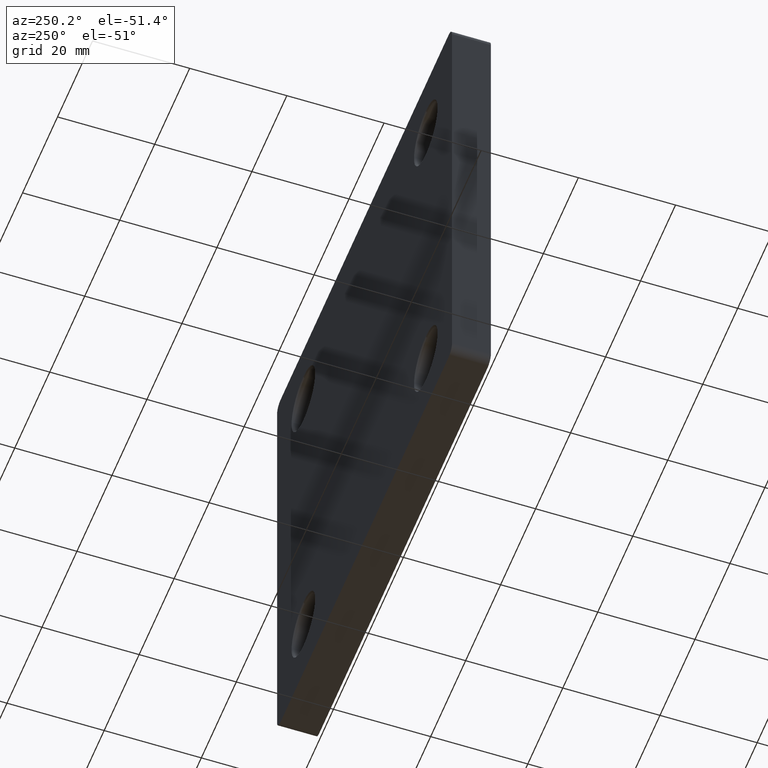
[diagram: clean part render]
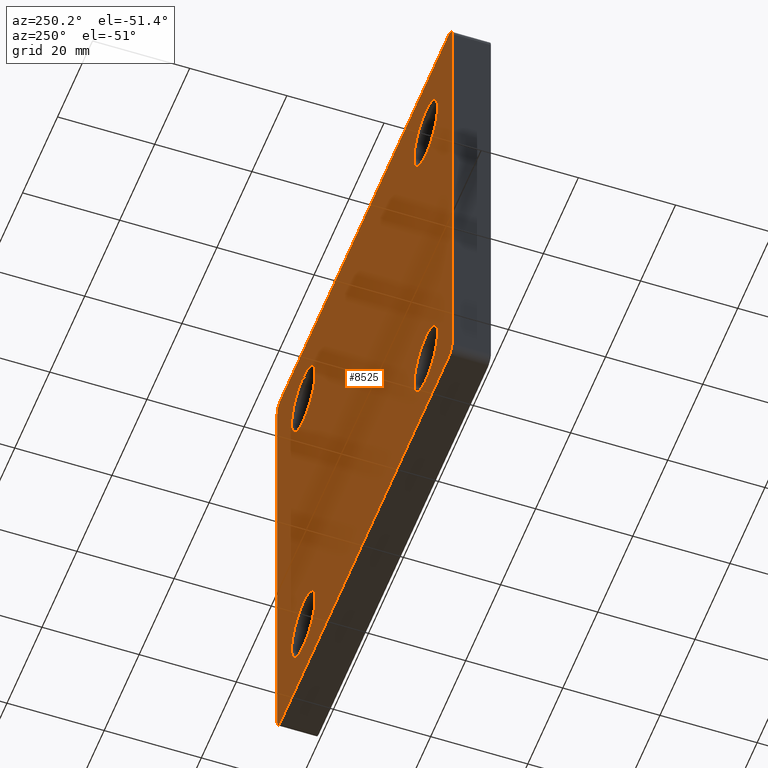
[diagram: same view with one face highlighted and labeled with its STEP entity id]
A machine part, auxiliary view. The second image highlights one B-rep face of the part: STEP entity #8525.
In plain terms, the highlighted planar face has unit normal (0, 1, 0).
Its self-contained STEP definition (entity closure, byte-faithful):
#90 = CIRCLE ( 'NONE', #7621, 6.749999999999992006 ) ;
#209 = VERTEX_POINT ( 'NONE', #3662 ) ;
#237 = CARTESIAN_POINT ( 'NONE',  ( -47.99999999999998579, 8.000000000000000000, 48.00000000000000711 ) ) ;
#589 = CARTESIAN_POINT ( 'NONE',  ( -35.00000000000000000, 8.000000000000000000, -35.00000000000000000 ) ) ;
#592 = EDGE_CURVE ( 'NONE', #4928, #6522, #7465, .T. ) ;
#710 = CARTESIAN_POINT ( 'NONE',  ( -50.00000000000000000, 8.000000000000000000, -49.99999999999998579 ) ) ;
#745 = DIRECTION ( 'NONE',  ( 0.000000000000000000, 0.000000000000000000, 1.000000000000000000 ) ) ;
#759 = EDGE_CURVE ( 'NONE', #9297, #1478, #1595, .T. ) ;
#926 = DIRECTION ( 'NONE',  ( 0.000000000000000000, 1.000000000000000000, 0.000000000000000000 ) ) ;
#1020 = DIRECTION ( 'NONE',  ( 0.000000000000000000, 0.000000000000000000, 1.000000000000000000 ) ) ;
#1106 = LINE ( 'NONE', #3955, #8121 ) ;
#1234 = ORIENTED_EDGE ( 'NONE', *, *, #11075, .T. ) ;
#1327 = VERTEX_POINT ( 'NONE', #9673 ) ;
#1365 = ORIENTED_EDGE ( 'NONE', *, *, #7960, .T. ) ;
#1395 = AXIS2_PLACEMENT_3D ( 'NONE', #237, #2259, #12548 ) ;
#1478 = VERTEX_POINT ( 'NONE', #7026 ) ;
#1479 = LINE ( 'NONE', #710, #9286 ) ;
#1538 = EDGE_CURVE ( 'NONE', #6522, #2743, #1895, .T. ) ;
#1542 = DIRECTION ( 'NONE',  ( -0.000000000000000000, -1.000000000000000000, -0.000000000000000000 ) ) ;
#1595 = CIRCLE ( 'NONE', #1395, 2.000000000000001776 ) ;
#1596 = DIRECTION ( 'NONE',  ( -0.000000000000000000, -1.000000000000000000, -0.000000000000000000 ) ) ;
#1764 = CIRCLE ( 'NONE', #2975, 6.749999999999992006 ) ;
#1876 = CARTESIAN_POINT ( 'NONE',  ( 50.00000000000001421, 8.000000000000000000, 48.00000000000000711 ) ) ;
#1886 = VERTEX_POINT ( 'NONE', #7712 ) ;
#1895 = CIRCLE ( 'NONE', #3956, 2.000000000000001776 ) ;
#1943 = VERTEX_POINT ( 'NONE', #8567 ) ;
#1976 = VERTEX_POINT ( 'NONE', #8964 ) ;
#2094 = EDGE_CURVE ( 'NONE', #1976, #1327, #90, .T. ) ;
#2136 = EDGE_CURVE ( 'NONE', #1943, #4928, #10287, .T. ) ;
#2238 = DIRECTION ( 'NONE',  ( -2.775557561562891351E-16, -0.000000000000000000, -1.000000000000000000 ) ) ;
#2259 = DIRECTION ( 'NONE',  ( 0.000000000000000000, 1.000000000000000000, 0.000000000000000000 ) ) ;
#2266 = ORIENTED_EDGE ( 'NONE', *, *, #2136, .T. ) ;
#2291 = AXIS2_PLACEMENT_3D ( 'NONE', #9301, #3326, #3156 ) ;
#2304 = CARTESIAN_POINT ( 'NONE',  ( -35.00000000000000000, 8.000000000000000000, -35.00000000000000000 ) ) ;
#2310 = ORIENTED_EDGE ( 'NONE', *, *, #759, .T. ) ;
#2425 = AXIS2_PLACEMENT_3D ( 'NONE', #9183, #4049, #10205 ) ;
#2582 = CARTESIAN_POINT ( 'NONE',  ( -48.00000000000000000, 8.000000000000000000, -49.99999999999998579 ) ) ;
#2743 = VERTEX_POINT ( 'NONE', #7718 ) ;
#2808 = ORIENTED_EDGE ( 'NONE', *, *, #8892, .T. ) ;
#2936 = EDGE_LOOP ( 'NONE', ( #1234, #7063 ) ) ;
#2975 = AXIS2_PLACEMENT_3D ( 'NONE', #7368, #11312, #8408 ) ;
#3073 = CARTESIAN_POINT ( 'NONE',  ( -35.00000000000000000, 8.000000000000000000, 35.00000000000000000 ) ) ;
#3123 = DIRECTION ( 'NONE',  ( -0.000000000000000000, -1.000000000000000000, -0.000000000000000000 ) ) ;
#3156 = DIRECTION ( 'NONE',  ( 0.000000000000000000, 0.000000000000000000, 1.000000000000000000 ) ) ;
#3167 = PLANE ( 'NONE',  #5350 ) ;
#3169 = VECTOR ( 'NONE', #2238, 1000.000000000000000 ) ;
#3326 = DIRECTION ( 'NONE',  ( -0.000000000000000000, -1.000000000000000000, -0.000000000000000000 ) ) ;
#3636 = VECTOR ( 'NONE', #10868, 1000.000000000000000 ) ;
#3662 = CARTESIAN_POINT ( 'NONE',  ( -35.00000000000000000, 8.000000000000000000, -28.25000000000001066 ) ) ;
#3925 = AXIS2_PLACEMENT_3D ( 'NONE', #11929, #1542, #11881 ) ;
#3932 = VERTEX_POINT ( 'NONE', #7965 ) ;
#3955 = CARTESIAN_POINT ( 'NONE',  ( -49.99999999999998579, 8.000000000000000000, 50.00000000000000711 ) ) ;
#3956 = AXIS2_PLACEMENT_3D ( 'NONE', #9052, #926, #9095 ) ;
#4049 = DIRECTION ( 'NONE',  ( 0.000000000000000000, 1.000000000000000000, 0.000000000000000000 ) ) ;
#4270 = CARTESIAN_POINT ( 'NONE',  ( 0.000000000000000000, 8.000000000000000000, 0.000000000000000000 ) ) ;
#4293 = FACE_BOUND ( 'NONE', #6095, .T. ) ;
#4609 = FACE_BOUND ( 'NONE', #5210, .T. ) ;
#4735 = ORIENTED_EDGE ( 'NONE', *, *, #592, .T. ) ;
#4820 = EDGE_CURVE ( 'NONE', #2743, #8709, #1479, .T. ) ;
#4855 = DIRECTION ( 'NONE',  ( -1.000000000000000000, -0.000000000000000000, 6.938893903907229610E-17 ) ) ;
#4912 = CARTESIAN_POINT ( 'NONE',  ( 35.00000000000000000, 8.000000000000000000, -35.00000000000000000 ) ) ;
#4928 = VERTEX_POINT ( 'NONE', #1876 ) ;
#5012 = ORIENTED_EDGE ( 'NONE', *, *, #10138, .T. ) ;
#5058 = EDGE_LOOP ( 'NONE', ( #4735, #13051, #6130, #8630, #1365, #2310, #2808, #2266 ) ) ;
#5083 = CIRCLE ( 'NONE', #5687, 6.749999999999992006 ) ;
#5210 = EDGE_LOOP ( 'NONE', ( #9262, #5012 ) ) ;
#5306 = ORIENTED_EDGE ( 'NONE', *, *, #9489, .T. ) ;
#5350 = AXIS2_PLACEMENT_3D ( 'NONE', #4270, #6222, #11416 ) ;
#5599 = ORIENTED_EDGE ( 'NONE', *, *, #12294, .T. ) ;
#5687 = AXIS2_PLACEMENT_3D ( 'NONE', #589, #1596, #12892 ) ;
#5922 = DIRECTION ( 'NONE',  ( 0.000000000000000000, 0.000000000000000000, 1.000000000000000000 ) ) ;
#6071 = CARTESIAN_POINT ( 'NONE',  ( 35.00000000000000000, 8.000000000000000000, -28.25000000000001066 ) ) ;
#6095 = EDGE_LOOP ( 'NONE', ( #7374, #5599 ) ) ;
#6130 = ORIENTED_EDGE ( 'NONE', *, *, #4820, .T. ) ;
#6156 = CARTESIAN_POINT ( 'NONE',  ( -49.99999999999998579, 8.000000000000000000, 48.00000000000001421 ) ) ;
#6222 = DIRECTION ( 'NONE',  ( 0.000000000000000000, 1.000000000000000000, 0.000000000000000000 ) ) ;
#6268 = CARTESIAN_POINT ( 'NONE',  ( 49.99999999999998579, 8.000000000000000000, -49.99999999999999289 ) ) ;
#6288 = CARTESIAN_POINT ( 'NONE',  ( 49.99999999999998579, 8.000000000000000000, -47.99999999999999289 ) ) ;
#6522 = VERTEX_POINT ( 'NONE', #6288 ) ;
#6654 = CIRCLE ( 'NONE', #12614, 2.000000000000001776 ) ;
#6793 = CARTESIAN_POINT ( 'NONE',  ( -48.00000000000000000, 8.000000000000000000, -47.99999999999998579 ) ) ;
#7026 = CARTESIAN_POINT ( 'NONE',  ( -47.99999999999998579, 8.000000000000000000, 50.00000000000000711 ) ) ;
#7038 = EDGE_CURVE ( 'NONE', #10990, #1886, #10674, .T. ) ;
#7063 = ORIENTED_EDGE ( 'NONE', *, *, #7268, .T. ) ;
#7071 = VERTEX_POINT ( 'NONE', #11353 ) ;
#7093 = EDGE_CURVE ( 'NONE', #9321, #3932, #1764, .T. ) ;
#7268 = EDGE_CURVE ( 'NONE', #10740, #209, #5083, .T. ) ;
#7323 = DIRECTION ( 'NONE',  ( 0.000000000000000000, 0.000000000000000000, 1.000000000000000000 ) ) ;
#7364 = DIRECTION ( 'NONE',  ( -0.000000000000000000, -1.000000000000000000, -0.000000000000000000 ) ) ;
#7368 = CARTESIAN_POINT ( 'NONE',  ( 35.00000000000000000, 8.000000000000000000, 35.00000000000000000 ) ) ;
#7374 = ORIENTED_EDGE ( 'NONE', *, *, #7038, .T. ) ;
#7465 = LINE ( 'NONE', #6268, #3169 ) ;
#7621 = AXIS2_PLACEMENT_3D ( 'NONE', #3073, #3123, #1020 ) ;
#7642 = FACE_OUTER_BOUND ( 'NONE', #5058, .T. ) ;
#7712 = CARTESIAN_POINT ( 'NONE',  ( 35.00000000000000000, 8.000000000000000000, -41.74999999999999289 ) ) ;
#7718 = CARTESIAN_POINT ( 'NONE',  ( 47.99999999999995737, 8.000000000000000000, -49.99999999999999289 ) ) ;
#7880 = CARTESIAN_POINT ( 'NONE',  ( -50.00000000000000000, 8.000000000000000000, -49.99999999999998579 ) ) ;
#7944 = EDGE_CURVE ( 'NONE', #8709, #7071, #6654, .T. ) ;
#7960 = EDGE_CURVE ( 'NONE', #7071, #9297, #8763, .T. ) ;
#7965 = CARTESIAN_POINT ( 'NONE',  ( 35.00000000000000000, 8.000000000000000000, 28.25000000000001066 ) ) ;
#8121 = VECTOR ( 'NONE', #11223, 1000.000000000000000 ) ;
#8364 = CARTESIAN_POINT ( 'NONE',  ( 35.00000000000000000, 8.000000000000000000, 35.00000000000000000 ) ) ;
#8408 = DIRECTION ( 'NONE',  ( 0.000000000000000000, 0.000000000000000000, 1.000000000000000000 ) ) ;
#8525 = ADVANCED_FACE ( 'NONE', ( #4609, #4293, #10815, #10356, #7642 ), #3167, .T. ) ;
#8567 = CARTESIAN_POINT ( 'NONE',  ( 48.00000000000001421, 8.000000000000000000, 50.00000000000000711 ) ) ;
#8630 = ORIENTED_EDGE ( 'NONE', *, *, #7944, .T. ) ;
#8709 = VERTEX_POINT ( 'NONE', #2582 ) ;
#8763 = LINE ( 'NONE', #7880, #3636 ) ;
#8892 = EDGE_CURVE ( 'NONE', #1478, #1943, #1106, .T. ) ;
#8893 = AXIS2_PLACEMENT_3D ( 'NONE', #2304, #7364, #9388 ) ;
#8964 = CARTESIAN_POINT ( 'NONE',  ( -35.00000000000000000, 8.000000000000000000, 41.74999999999999289 ) ) ;
#9052 = CARTESIAN_POINT ( 'NONE',  ( 47.99999999999998579, 8.000000000000000000, -47.99999999999999289 ) ) ;
#9095 = DIRECTION ( 'NONE',  ( 0.000000000000000000, 0.000000000000000000, 1.000000000000000000 ) ) ;
#9183 = CARTESIAN_POINT ( 'NONE',  ( 48.00000000000001421, 8.000000000000000000, 48.00000000000000711 ) ) ;
#9221 = CIRCLE ( 'NONE', #3925, 6.749999999999992006 ) ;
#9262 = ORIENTED_EDGE ( 'NONE', *, *, #7093, .T. ) ;
#9286 = VECTOR ( 'NONE', #4855, 1000.000000000000000 ) ;
#9297 = VERTEX_POINT ( 'NONE', #6156 ) ;
#9301 = CARTESIAN_POINT ( 'NONE',  ( 35.00000000000000000, 8.000000000000000000, -35.00000000000000000 ) ) ;
#9321 = VERTEX_POINT ( 'NONE', #11084 ) ;
#9388 = DIRECTION ( 'NONE',  ( 0.000000000000000000, 0.000000000000000000, 1.000000000000000000 ) ) ;
#9489 = EDGE_CURVE ( 'NONE', #1327, #1976, #9221, .T. ) ;
#9673 = CARTESIAN_POINT ( 'NONE',  ( -35.00000000000000000, 8.000000000000000000, 28.25000000000001066 ) ) ;
#10021 = CIRCLE ( 'NONE', #12723, 6.749999999999992006 ) ;
#10138 = EDGE_CURVE ( 'NONE', #3932, #9321, #10021, .T. ) ;
#10205 = DIRECTION ( 'NONE',  ( 0.000000000000000000, 0.000000000000000000, 1.000000000000000000 ) ) ;
#10287 = CIRCLE ( 'NONE', #2425, 2.000000000000001776 ) ;
#10356 = FACE_BOUND ( 'NONE', #12313, .T. ) ;
#10674 = CIRCLE ( 'NONE', #2291, 6.749999999999992006 ) ;
#10740 = VERTEX_POINT ( 'NONE', #12523 ) ;
#10815 = FACE_BOUND ( 'NONE', #2936, .T. ) ;
#10821 = DIRECTION ( 'NONE',  ( 0.000000000000000000, 1.000000000000000000, 0.000000000000000000 ) ) ;
#10868 = DIRECTION ( 'NONE',  ( 1.387778780781445676E-16, 0.000000000000000000, 1.000000000000000000 ) ) ;
#10953 = CIRCLE ( 'NONE', #8893, 6.749999999999992006 ) ;
#10990 = VERTEX_POINT ( 'NONE', #6071 ) ;
#11075 = EDGE_CURVE ( 'NONE', #209, #10740, #10953, .T. ) ;
#11084 = CARTESIAN_POINT ( 'NONE',  ( 35.00000000000000000, 8.000000000000000000, 41.74999999999999289 ) ) ;
#11113 = AXIS2_PLACEMENT_3D ( 'NONE', #4912, #12066, #5922 ) ;
#11223 = DIRECTION ( 'NONE',  ( 1.000000000000000000, 0.000000000000000000, 0.000000000000000000 ) ) ;
#11312 = DIRECTION ( 'NONE',  ( -0.000000000000000000, -1.000000000000000000, -0.000000000000000000 ) ) ;
#11353 = CARTESIAN_POINT ( 'NONE',  ( -50.00000000000000000, 8.000000000000000000, -47.99999999999998579 ) ) ;
#11416 = DIRECTION ( 'NONE',  ( 0.000000000000000000, -0.000000000000000000, 1.000000000000000000 ) ) ;
#11746 = ORIENTED_EDGE ( 'NONE', *, *, #2094, .T. ) ;
#11881 = DIRECTION ( 'NONE',  ( 0.000000000000000000, 0.000000000000000000, 1.000000000000000000 ) ) ;
#11929 = CARTESIAN_POINT ( 'NONE',  ( -35.00000000000000000, 8.000000000000000000, 35.00000000000000000 ) ) ;
#12066 = DIRECTION ( 'NONE',  ( -0.000000000000000000, -1.000000000000000000, -0.000000000000000000 ) ) ;
#12294 = EDGE_CURVE ( 'NONE', #1886, #10990, #13164, .T. ) ;
#12313 = EDGE_LOOP ( 'NONE', ( #11746, #5306 ) ) ;
#12515 = DIRECTION ( 'NONE',  ( -0.000000000000000000, -1.000000000000000000, -0.000000000000000000 ) ) ;
#12523 = CARTESIAN_POINT ( 'NONE',  ( -35.00000000000000000, 8.000000000000000000, -41.74999999999999289 ) ) ;
#12548 = DIRECTION ( 'NONE',  ( 0.000000000000000000, 0.000000000000000000, 1.000000000000000000 ) ) ;
#12614 = AXIS2_PLACEMENT_3D ( 'NONE', #6793, #10821, #745 ) ;
#12723 = AXIS2_PLACEMENT_3D ( 'NONE', #8364, #12515, #7323 ) ;
#12892 = DIRECTION ( 'NONE',  ( 0.000000000000000000, 0.000000000000000000, 1.000000000000000000 ) ) ;
#13051 = ORIENTED_EDGE ( 'NONE', *, *, #1538, .T. ) ;
#13164 = CIRCLE ( 'NONE', #11113, 6.749999999999992006 ) ;